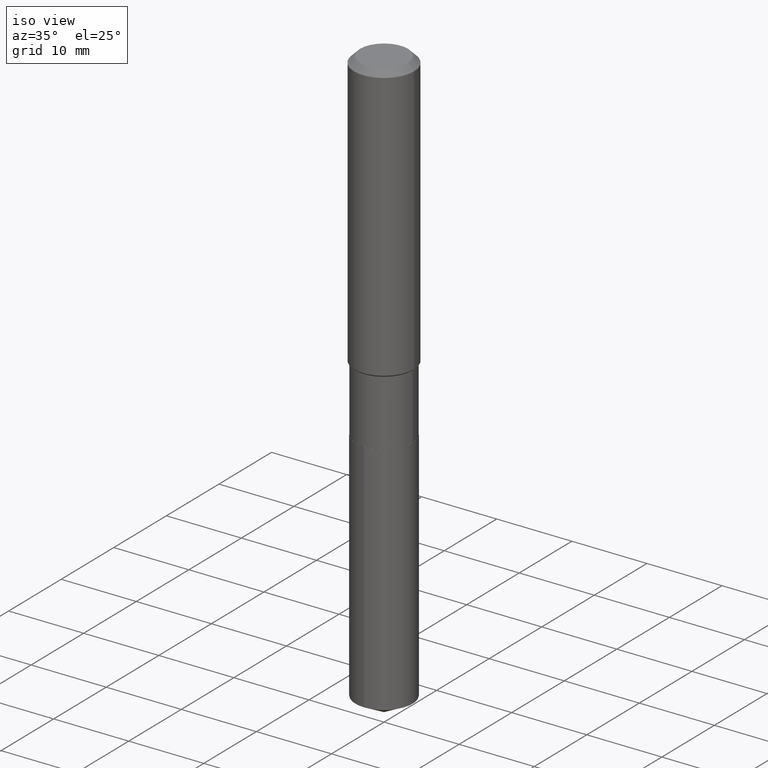
[diagram: clean part render]
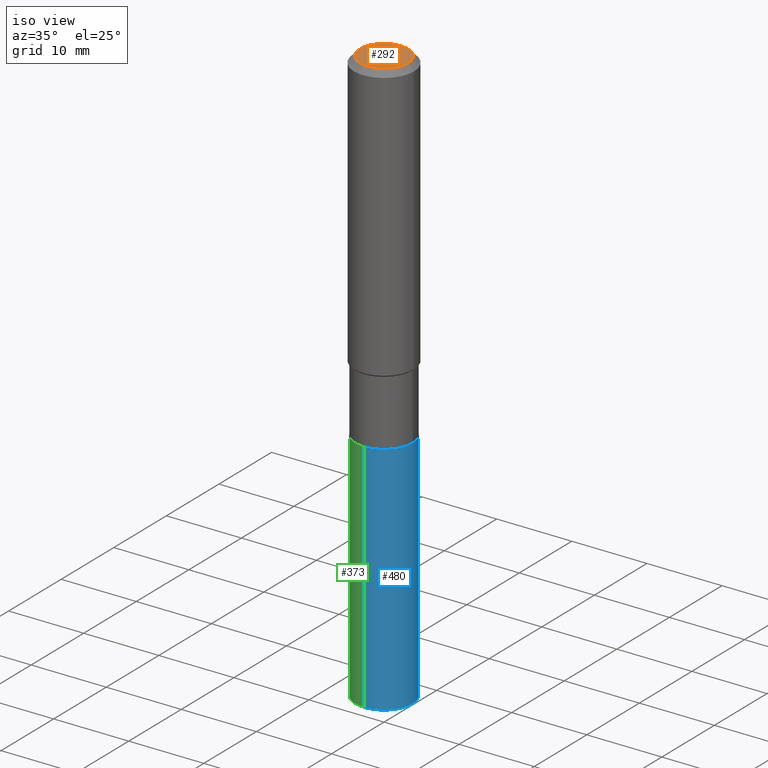
[diagram: same view with three faces highlighted in distinct colors, each labeled with its STEP entity id]
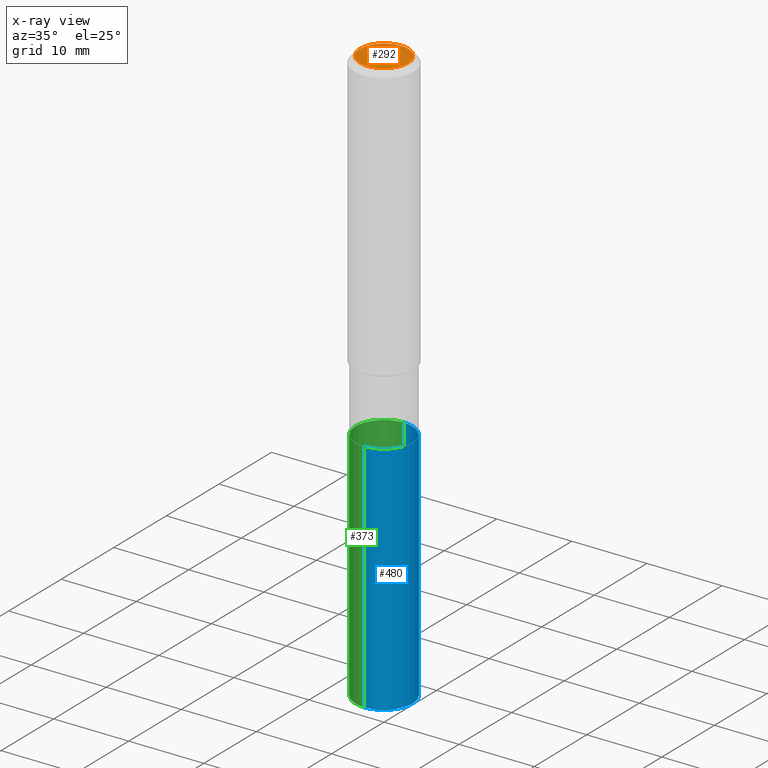
[diagram: x-ray of the same camera — body ghosted, the three highlighted faces saturated]
A machine part, iso view with three faces highlighted in distinct colors.
The next image is the same camera in x-ray (body ghosted, the three faces saturated) — at least one of them is partly hidden behind the body in this view.
Their STEP definitions:

[orange] entity #292 — the highlighted planar face has unit normal (0, -0, -1).
#15 = CARTESIAN_POINT ( 'NONE',  ( -9.439721640706201686E-47, 1.347742071746726764E-32, 3.860086710912459732E-18 ) ) ;
#108 = DIRECTION ( 'NONE',  ( -1.000000000000000000, 6.982962677686265922E-15, -4.876176775795935793E-29 ) ) ;
#116 = VERTEX_POINT ( 'NONE', #287 ) ;
#118 = AXIS2_PLACEMENT_3D ( 'NONE', #442, #371, #108 ) ;
#120 = EDGE_CURVE ( 'NONE', #116, #447, #185, .T. ) ;
#165 = DIRECTION ( 'NONE',  ( -2.445468806185136597E-29, 3.491481338843145583E-15, 1.000000000000000000 ) ) ;
#185 = CIRCLE ( 'NONE', #231, 0.1260000000000000009 ) ;
#207 = CARTESIAN_POINT ( 'NONE',  ( -9.439721640706201686E-47, 1.347742071746726764E-32, 3.860086710912459732E-18 ) ) ;
#231 = AXIS2_PLACEMENT_3D ( 'NONE', #207, #290, #342 ) ;
#240 = CARTESIAN_POINT ( 'NONE',  ( 0.1260000000000000009, -1.027466422270894443E-15, 3.860086710919128072E-18 ) ) ;
#269 = FACE_OUTER_BOUND ( 'NONE', #294, .T. ) ;
#282 = DIRECTION ( 'NONE',  ( 1.000000000000000000, -6.982962677686265922E-15, 4.876281427513067258E-29 ) ) ;
#287 = CARTESIAN_POINT ( 'NONE',  ( -0.1260000000000000009, 9.348441284752484904E-16, 3.860086710906114178E-18 ) ) ;
#290 = DIRECTION ( 'NONE',  ( -2.445468806185136597E-29, 3.491481338843145583E-15, 1.000000000000000000 ) ) ;
#292 = ADVANCED_FACE ( 'NONE', ( #269 ), #299, .F. ) ;
#294 = EDGE_LOOP ( 'NONE', ( #419, #468 ) ) ;
#299 = PLANE ( 'NONE',  #118 ) ;
#342 = DIRECTION ( 'NONE',  ( 1.000000000000000000, -6.982962677686265922E-15, 4.876281427513067258E-29 ) ) ;
#367 = CIRCLE ( 'NONE', #467, 0.1260000000000000009 ) ;
#371 = DIRECTION ( 'NONE',  ( 2.438088387897960049E-29, -3.491481338843145188E-15, -1.000000000000000000 ) ) ;
#419 = ORIENTED_EDGE ( 'NONE', *, *, #120, .T. ) ;
#439 = EDGE_CURVE ( 'NONE', #447, #116, #367, .T. ) ;
#442 = CARTESIAN_POINT ( 'NONE',  ( -4.719860820353100843E-47, 6.738710358733633822E-33, 1.930043355456229866E-18 ) ) ;
#447 = VERTEX_POINT ( 'NONE', #240 ) ;
#467 = AXIS2_PLACEMENT_3D ( 'NONE', #15, #165, #282 ) ;
#468 = ORIENTED_EDGE ( 'NONE', *, *, #439, .T. ) ;

[blue] entity #480 — the highlighted cylindrical surface (edge-blend (fillet) strip) has radius 3.7998 mm, axis along (-0, 0, 1).
#11 = EDGE_CURVE ( 'NONE', #199, #16, #301, .T. ) ;
#16 = VERTEX_POINT ( 'NONE', #341 ) ;
#23 = DIRECTION ( 'NONE',  ( -2.445338852307477457E-29, 3.491667440192468911E-15, 1.000000000000000000 ) ) ;
#63 = CARTESIAN_POINT ( 'NONE',  ( 7.411214815833421905E-29, -1.058170972782204081E-14, -3.030656269023443539 ) ) ;
#65 = CARTESIAN_POINT ( 'NONE',  ( -1.044651216581821425E-15, -0.1496000000000062835, -1.795199999999999463 ) ) ;
#71 = EDGE_CURVE ( 'NONE', #428, #347, #400, .T. ) ;
#76 = CARTESIAN_POINT ( 'NONE',  ( 4.390105600863557446E-29, -6.267907299491214904E-15, -1.795200000000000129 ) ) ;
#78 = EDGE_CURVE ( 'NONE', #16, #347, #172, .T. ) ;
#84 = VECTOR ( 'NONE', #378, 39.37007874015748143 ) ;
#96 = DIRECTION ( 'NONE',  ( -6.982962677686265922E-15, -1.000000000000000000, 3.652203200085913145E-15 ) ) ;
#109 = DIRECTION ( 'NONE',  ( -6.982962677686265922E-15, -1.000000000000000000, 3.652203200085913145E-15 ) ) ;
#112 = DIRECTION ( 'NONE',  ( -2.445338852307477177E-29, 3.491667440192468911E-15, 1.000000000000000000 ) ) ;
#148 = VECTOR ( 'NONE', #112, 39.37007874015748143 ) ;
#172 = LINE ( 'NONE', #228, #84 ) ;
#173 = DIRECTION ( 'NONE',  ( -2.445338852307477457E-29, 3.491667440192468911E-15, 1.000000000000000000 ) ) ;
#175 = CARTESIAN_POINT ( 'NONE',  ( 4.390105600863557446E-29, -6.267907299491214904E-15, -1.795200000000000129 ) ) ;
#198 = CARTESIAN_POINT ( 'NONE',  ( -1.044651216581791645E-15, -0.1496000000000106134, -3.030656269023443095 ) ) ;
#199 = VERTEX_POINT ( 'NONE', #198 ) ;
#217 = ORIENTED_EDGE ( 'NONE', *, *, #78, .T. ) ;
#223 = DIRECTION ( 'NONE',  ( -2.445338852307477457E-29, 3.491667440192468911E-15, 1.000000000000000000 ) ) ;
#228 = CARTESIAN_POINT ( 'NONE',  ( 1.062971932697153736E-15, 0.1495999999999937380, -1.795200000000000573 ) ) ;
#244 = AXIS2_PLACEMENT_3D ( 'NONE', #175, #173, #361 ) ;
#300 = EDGE_CURVE ( 'NONE', #199, #428, #405, .T. ) ;
#301 = CIRCLE ( 'NONE', #474, 0.1496000000000000107 ) ;
#312 = CARTESIAN_POINT ( 'NONE',  ( 1.062971932697184107E-15, 0.1495999999999937380, -1.795200000000000573 ) ) ;
#321 = ORIENTED_EDGE ( 'NONE', *, *, #300, .F. ) ;
#341 = CARTESIAN_POINT ( 'NONE',  ( 1.062971932697184107E-15, 0.1495999999999894636, -3.030656269023443983 ) ) ;
#343 = ORIENTED_EDGE ( 'NONE', *, *, #71, .F. ) ;
#347 = VERTEX_POINT ( 'NONE', #312 ) ;
#361 = DIRECTION ( 'NONE',  ( -6.982962677686265922E-15, -1.000000000000000000, 3.652203200085913145E-15 ) ) ;
#376 = AXIS2_PLACEMENT_3D ( 'NONE', #76, #23, #96 ) ;
#378 = DIRECTION ( 'NONE',  ( -2.445338852307477177E-29, 3.491667440192468911E-15, 1.000000000000000000 ) ) ;
#390 = ORIENTED_EDGE ( 'NONE', *, *, #11, .T. ) ;
#400 = CIRCLE ( 'NONE', #376, 0.1496000000000000107 ) ;
#405 = LINE ( 'NONE', #65, #148 ) ;
#424 = EDGE_LOOP ( 'NONE', ( #390, #217, #343, #321 ) ) ;
#428 = VERTEX_POINT ( 'NONE', #470 ) ;
#455 = FACE_OUTER_BOUND ( 'NONE', #424, .T. ) ;
#470 = CARTESIAN_POINT ( 'NONE',  ( -1.044651216581821425E-15, -0.1496000000000062835, -1.795199999999999463 ) ) ;
#473 = CYLINDRICAL_SURFACE ( 'NONE', #244, 0.1496000000000000107 ) ;
#474 = AXIS2_PLACEMENT_3D ( 'NONE', #63, #223, #109 ) ;
#480 = ADVANCED_FACE ( 'NONE', ( #455 ), #473, .T. ) ;

[green] entity #373 — the highlighted cylindrical surface (edge-blend (fillet) strip) has radius 3.7998 mm, axis along (-0, 0, 1).
#2 = DIRECTION ( 'NONE',  ( -2.445338852307477457E-29, 3.491667440192468911E-15, 1.000000000000000000 ) ) ;
#16 = VERTEX_POINT ( 'NONE', #341 ) ;
#50 = EDGE_CURVE ( 'NONE', #16, #199, #110, .T. ) ;
#60 = ORIENTED_EDGE ( 'NONE', *, *, #78, .F. ) ;
#65 = CARTESIAN_POINT ( 'NONE',  ( -1.044651216581821425E-15, -0.1496000000000062835, -1.795199999999999463 ) ) ;
#77 = ORIENTED_EDGE ( 'NONE', *, *, #190, .F. ) ;
#78 = EDGE_CURVE ( 'NONE', #16, #347, #172, .T. ) ;
#84 = VECTOR ( 'NONE', #378, 39.37007874015748143 ) ;
#93 = ORIENTED_EDGE ( 'NONE', *, *, #300, .T. ) ;
#107 = DIRECTION ( 'NONE',  ( -2.445338852307477457E-29, 3.491667440192468911E-15, 1.000000000000000000 ) ) ;
#110 = CIRCLE ( 'NONE', #340, 0.1496000000000000107 ) ;
#112 = DIRECTION ( 'NONE',  ( -2.445338852307477177E-29, 3.491667440192468911E-15, 1.000000000000000000 ) ) ;
#119 = DIRECTION ( 'NONE',  ( -2.445338852307477457E-29, 3.491667440192468911E-15, 1.000000000000000000 ) ) ;
#121 = DIRECTION ( 'NONE',  ( -6.982962677686265922E-15, -1.000000000000000000, 3.652203200085913145E-15 ) ) ;
#148 = VECTOR ( 'NONE', #112, 39.37007874015748143 ) ;
#162 = CYLINDRICAL_SURFACE ( 'NONE', #253, 0.1496000000000000107 ) ;
#167 = ORIENTED_EDGE ( 'NONE', *, *, #50, .T. ) ;
#172 = LINE ( 'NONE', #228, #84 ) ;
#190 = EDGE_CURVE ( 'NONE', #347, #428, #446, .T. ) ;
#198 = CARTESIAN_POINT ( 'NONE',  ( -1.044651216581791645E-15, -0.1496000000000106134, -3.030656269023443095 ) ) ;
#199 = VERTEX_POINT ( 'NONE', #198 ) ;
#228 = CARTESIAN_POINT ( 'NONE',  ( 1.062971932697153736E-15, 0.1495999999999937380, -1.795200000000000573 ) ) ;
#241 = EDGE_LOOP ( 'NONE', ( #60, #167, #93, #77 ) ) ;
#253 = AXIS2_PLACEMENT_3D ( 'NONE', #273, #2, #121 ) ;
#270 = DIRECTION ( 'NONE',  ( -6.982962677686265922E-15, -1.000000000000000000, 3.652203200085913145E-15 ) ) ;
#273 = CARTESIAN_POINT ( 'NONE',  ( 4.390105600863557446E-29, -6.267907299491214904E-15, -1.795200000000000129 ) ) ;
#300 = EDGE_CURVE ( 'NONE', #199, #428, #405, .T. ) ;
#303 = DIRECTION ( 'NONE',  ( -6.982962677686265922E-15, -1.000000000000000000, 3.652203200085913145E-15 ) ) ;
#312 = CARTESIAN_POINT ( 'NONE',  ( 1.062971932697184107E-15, 0.1495999999999937380, -1.795200000000000573 ) ) ;
#340 = AXIS2_PLACEMENT_3D ( 'NONE', #489, #107, #303 ) ;
#341 = CARTESIAN_POINT ( 'NONE',  ( 1.062971932697184107E-15, 0.1495999999999894636, -3.030656269023443983 ) ) ;
#347 = VERTEX_POINT ( 'NONE', #312 ) ;
#373 = ADVANCED_FACE ( 'NONE', ( #466 ), #162, .T. ) ;
#378 = DIRECTION ( 'NONE',  ( -2.445338852307477177E-29, 3.491667440192468911E-15, 1.000000000000000000 ) ) ;
#384 = AXIS2_PLACEMENT_3D ( 'NONE', #456, #119, #270 ) ;
#405 = LINE ( 'NONE', #65, #148 ) ;
#428 = VERTEX_POINT ( 'NONE', #470 ) ;
#446 = CIRCLE ( 'NONE', #384, 0.1496000000000000107 ) ;
#456 = CARTESIAN_POINT ( 'NONE',  ( 4.390105600863557446E-29, -6.267907299491214904E-15, -1.795200000000000129 ) ) ;
#466 = FACE_OUTER_BOUND ( 'NONE', #241, .T. ) ;
#470 = CARTESIAN_POINT ( 'NONE',  ( -1.044651216581821425E-15, -0.1496000000000062835, -1.795199999999999463 ) ) ;
#489 = CARTESIAN_POINT ( 'NONE',  ( 7.411214815833421905E-29, -1.058170972782204081E-14, -3.030656269023443539 ) ) ;